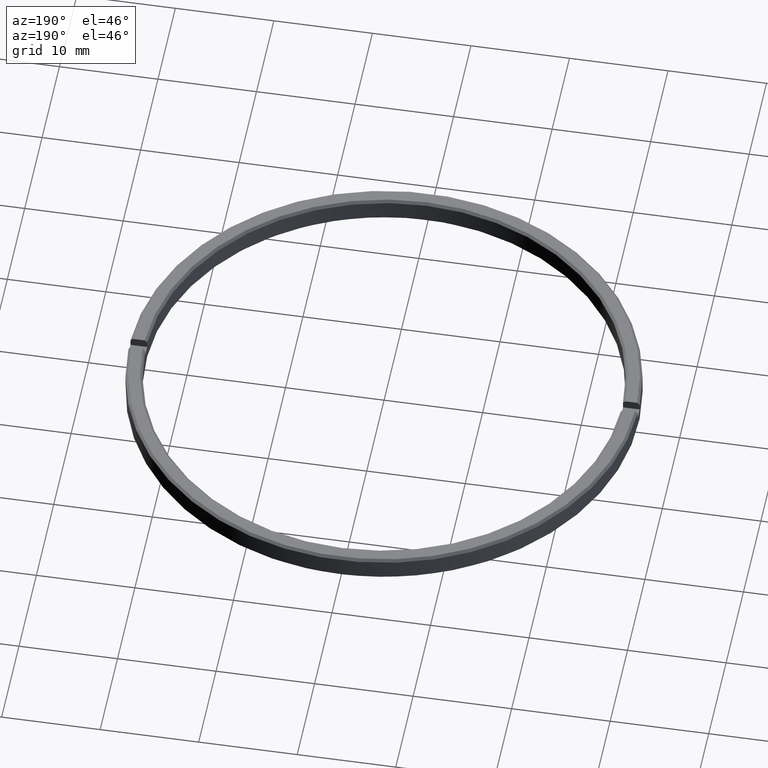
[diagram: clean part render]
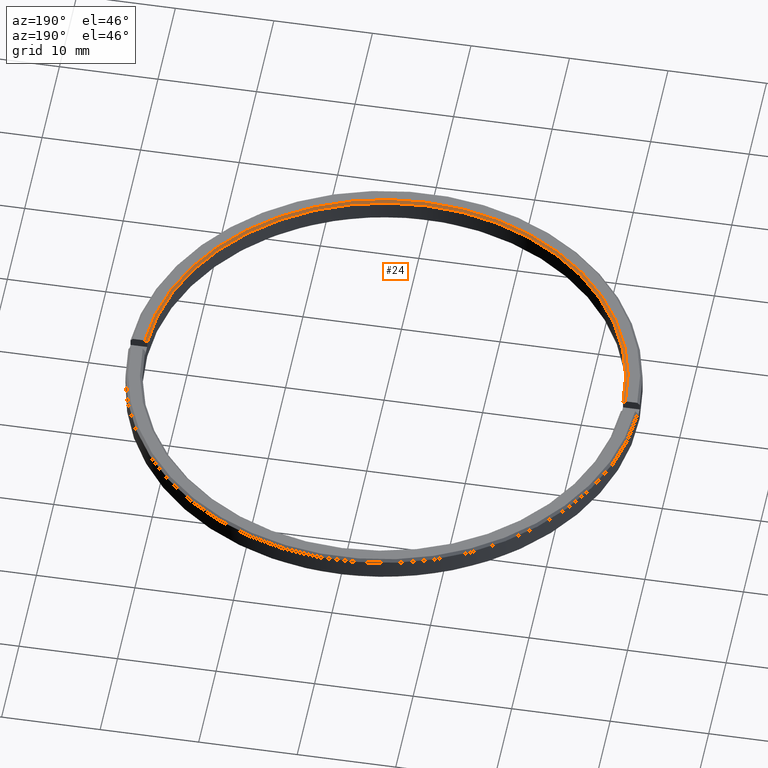
[diagram: same view with one face highlighted and labeled with its STEP entity id]
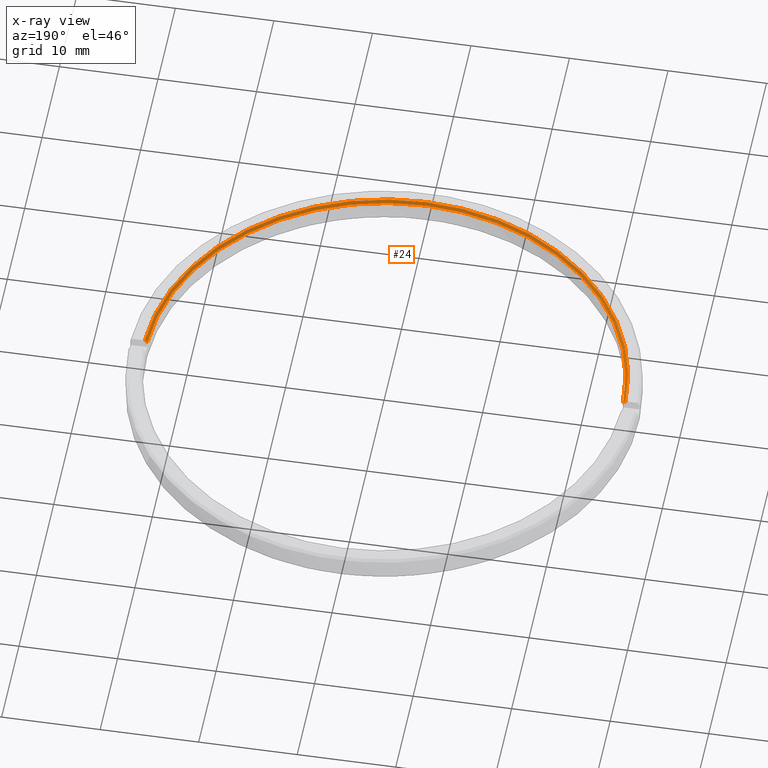
[diagram: x-ray of the same camera — body ghosted, the highlighted face saturated]
A machine part, auxiliary view. The second image highlights one B-rep face of the part: STEP entity #24.
The next image is the same camera in x-ray: the body ghosted, the highlighted face saturated — about 0% of this face is hidden behind the body in this view.
In plain terms, the highlighted conical surface has half-angle 45 deg.
Its self-contained STEP definition (entity closure, byte-faithful):
#10 = EDGE_CURVE ( 'NONE', #571, #54, #344, .T. ) ;
#23 = CARTESIAN_POINT ( 'NONE',  ( 24.39262183530548711, -0.6000000000000171863, 4.550754615721229933E-12 ) ) ;
#24 = ADVANCED_FACE ( 'NONE', ( #333 ), #223, .F. ) ;
#34 = CARTESIAN_POINT ( 'NONE',  ( -24.30926316512925212, -0.6000000000000449418, -0.08333346386030346387 ) ) ;
#52 = CARTESIAN_POINT ( 'NONE',  ( 24.14254543332135228, -0.6000000000000449418, -0.2500000000002927103 ) ) ;
#54 = VERTEX_POINT ( 'NONE', #564 ) ;
#67 = DIRECTION ( 'NONE',  ( 0.000000000000000000, -1.000000000000000000, -3.030971715756962365E-30 ) ) ;
#105 = DIRECTION ( 'NONE',  ( 3.157262203913503193E-32, -2.999399093717827902E-30, 1.000000000000000000 ) ) ;
#121 = AXIS2_PLACEMENT_3D ( 'NONE', #558, #105, #282 ) ;
#158 = DIRECTION ( 'NONE',  ( -3.081487911019577365E-32, 3.014754438446559643E-30, -1.000000000000000000 ) ) ;
#183 = CARTESIAN_POINT ( 'NONE',  ( -24.39262183530128070, -0.6000000000000171863, 3.440289484623940248E-13 ) ) ;
#185 = ORIENTED_EDGE ( 'NONE', *, *, #578, .T. ) ;
#202 = CARTESIAN_POINT ( 'NONE',  ( 24.22590436582300200, -0.6000000000000449418, -0.1666667985429750309 ) ) ;
#209 = EDGE_CURVE ( 'NONE', #571, #513, #517, .T. ) ;
#220 = CARTESIAN_POINT ( 'NONE',  ( -24.39262183530128070, -0.6000000000000171863, 3.440289484623940248E-13 ) ) ;
#223 = CONICAL_SURFACE ( 'NONE', #121, 24.39999999999999147, 0.7853981633974526089 ) ;
#238 = EDGE_LOOP ( 'NONE', ( #389, #274, #185, #466 ) ) ;
#274 = ORIENTED_EDGE ( 'NONE', *, *, #10, .T. ) ;
#282 = DIRECTION ( 'NONE',  ( 0.000000000000000000, -1.000000000000000000, -3.030971715756962365E-30 ) ) ;
#284 = CARTESIAN_POINT ( 'NONE',  ( 24.30926316513486540, -0.6000000000000449418, -0.08333346385469361794 ) ) ;
#303 = CARTESIAN_POINT ( 'NONE',  ( -24.14254543332124214, -0.6000000000000449418, -0.2500000000001097455 ) ) ;
#333 = FACE_OUTER_BOUND ( 'NONE', #238, .T. ) ;
#344 = B_SPLINE_CURVE_WITH_KNOTS ( 'NONE', 3,
 ( #378, #284, #202, #52 ),
 .UNSPECIFIED., .F., .F.,
 ( 4, 4 ),
 ( 6.451234442705939337E-15, 0.0003536074190911661533 ),
 .UNSPECIFIED. ) ;
#348 = B_SPLINE_CURVE_WITH_KNOTS ( 'NONE', 3,
 ( #303, #483, #34, #220 ),
 .UNSPECIFIED., .F., .F.,
 ( 4, 4 ),
 ( 5.393360955384571186E-17, 0.0003536074190786588512 ),
 .UNSPECIFIED. ) ;
#366 = EDGE_CURVE ( 'NONE', #502, #513, #348, .T. ) ;
#378 = CARTESIAN_POINT ( 'NONE',  ( 24.39262183530548711, -0.6000000000000171863, 4.550754615721229933E-12 ) ) ;
#382 = DIRECTION ( 'NONE',  ( 0.000000000000000000, -1.000000000000000000, 0.000000000000000000 ) ) ;
#383 = CARTESIAN_POINT ( 'NONE',  ( 2.432266328319622584E-62, -7.536886096116156507E-31, -9.974659986866639215E-15 ) ) ;
#389 = ORIENTED_EDGE ( 'NONE', *, *, #209, .F. ) ;
#391 = AXIS2_PLACEMENT_3D ( 'NONE', #570, #158, #382 ) ;
#466 = ORIENTED_EDGE ( 'NONE', *, *, #366, .T. ) ;
#467 = CIRCLE ( 'NONE', #391, 24.14999999999999858 ) ;
#477 = DIRECTION ( 'NONE',  ( -3.157262203913503193E-32, 2.999399093717827902E-30, -1.000000000000000000 ) ) ;
#483 = CARTESIAN_POINT ( 'NONE',  ( -24.22590436582019535, -0.6000000000000449418, -0.1666667985457817303 ) ) ;
#502 = VERTEX_POINT ( 'NONE', #592 ) ;
#513 = VERTEX_POINT ( 'NONE', #183 ) ;
#517 = CIRCLE ( 'NONE', #568, 24.39999999999999147 ) ;
#558 = CARTESIAN_POINT ( 'NONE',  ( 2.432266328319622584E-62, -7.536886096116156507E-31, -9.974659986866639215E-15 ) ) ;
#564 = CARTESIAN_POINT ( 'NONE',  ( 24.14254543332135228, -0.6000000000000449418, -0.2500000000002927103 ) ) ;
#568 = AXIS2_PLACEMENT_3D ( 'NONE', #383, #477, #67 ) ;
#570 = CARTESIAN_POINT ( 'NONE',  ( 6.933347799794055640E-32, 2.775557561562890720E-14, -0.2500000000000002220 ) ) ;
#571 = VERTEX_POINT ( 'NONE', #23 ) ;
#578 = EDGE_CURVE ( 'NONE', #54, #502, #467, .T. ) ;
#592 = CARTESIAN_POINT ( 'NONE',  ( -24.14254543332124214, -0.6000000000000449418, -0.2500000000001097455 ) ) ;